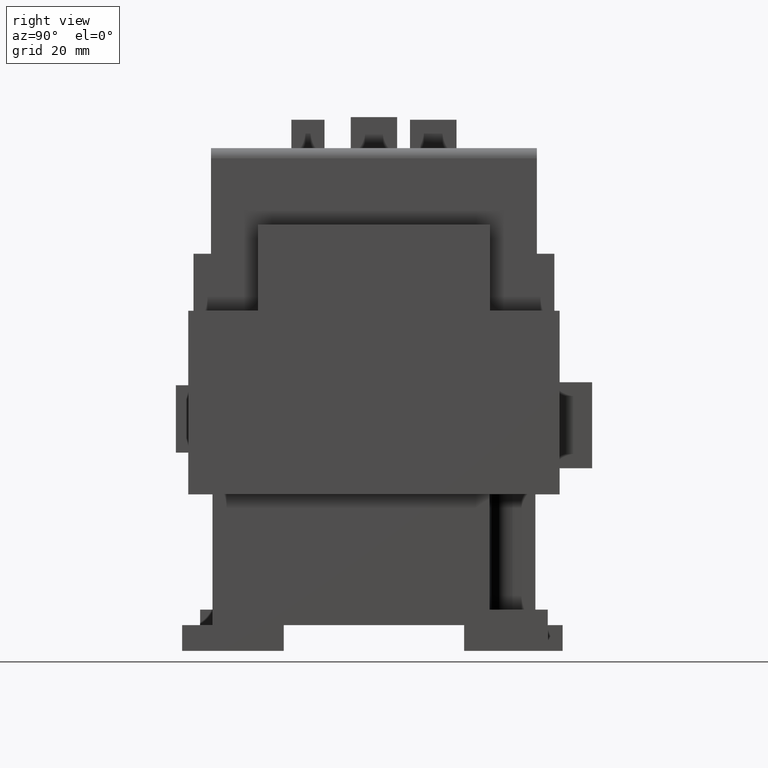
[diagram: clean part render]
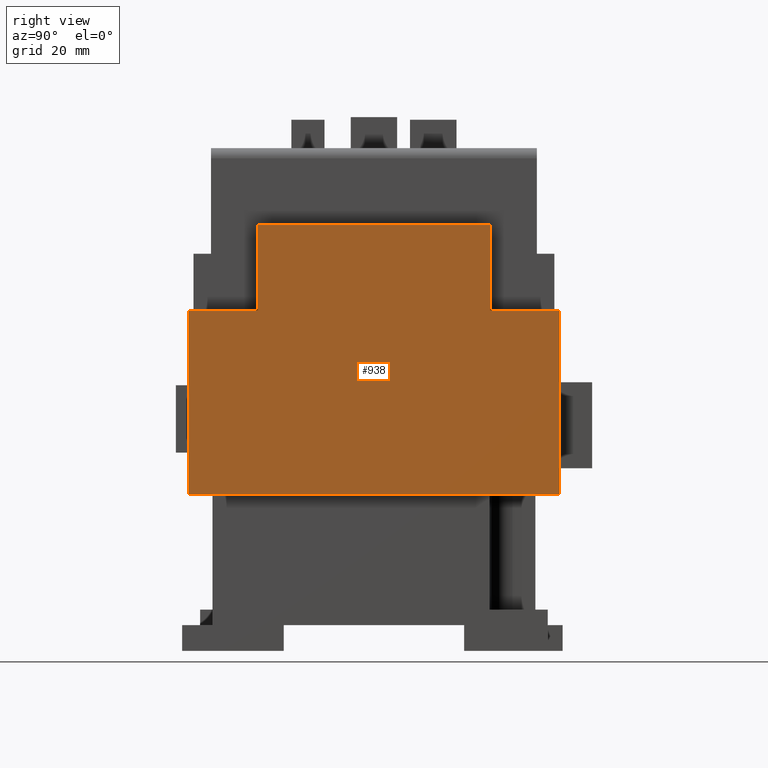
[diagram: same view with one face highlighted and labeled with its STEP entity id]
A machine part, right view. The second image highlights one B-rep face of the part: STEP entity #938.
In plain terms, the highlighted planar face has unit normal (-1, 0, 0).
Its self-contained STEP definition (entity closure, byte-faithful):
#938=ADVANCED_FACE('',(#1823),#1395,.F.);
#1395=PLANE('',#9949);
#1823=FACE_OUTER_BOUND('',#2407,.T.);
#2407=EDGE_LOOP('',(#4821,#4822,#4823,#4824,#4825,#4826,#4827,#4828));
#4821=ORIENTED_EDGE('',*,*,#7064,.F.);
#4822=ORIENTED_EDGE('',*,*,#7065,.F.);
#4823=ORIENTED_EDGE('',*,*,#7066,.F.);
#4824=ORIENTED_EDGE('',*,*,#7067,.F.);
#4825=ORIENTED_EDGE('',*,*,#7068,.F.);
#4826=ORIENTED_EDGE('',*,*,#6949,.T.);
#4827=ORIENTED_EDGE('',*,*,#6943,.T.);
#4828=ORIENTED_EDGE('',*,*,#6940,.T.);
#5730=VERTEX_POINT('',#14655);
#5731=VERTEX_POINT('',#14657);
#5733=VERTEX_POINT('',#14663);
#5736=VERTEX_POINT('',#14673);
#5816=VERTEX_POINT('',#14917);
#5817=VERTEX_POINT('',#14919);
#5818=VERTEX_POINT('',#14921);
#5819=VERTEX_POINT('',#14923);
#6940=EDGE_CURVE('',#5731,#5730,#8077,.T.);
#6943=EDGE_CURVE('',#5733,#5731,#8080,.T.);
#6949=EDGE_CURVE('',#5736,#5733,#8086,.T.);
#7064=EDGE_CURVE('',#5816,#5730,#8175,.T.);
#7065=EDGE_CURVE('',#5817,#5816,#8176,.T.);
#7066=EDGE_CURVE('',#5818,#5817,#8177,.T.);
#7067=EDGE_CURVE('',#5819,#5818,#8178,.T.);
#7068=EDGE_CURVE('',#5736,#5819,#8179,.T.);
#8077=LINE('',#14656,#9188);
#8080=LINE('',#14662,#9191);
#8086=LINE('',#14672,#9197);
#8175=LINE('',#14916,#9286);
#8176=LINE('',#14918,#9287);
#8177=LINE('',#14920,#9288);
#8178=LINE('',#14922,#9289);
#8179=LINE('',#14924,#9290);
#9188=VECTOR('',#12037,1.);
#9191=VECTOR('',#12042,1.);
#9197=VECTOR('',#12050,1.);
#9286=VECTOR('',#12289,1.);
#9287=VECTOR('',#12290,1.);
#9288=VECTOR('',#12291,1.);
#9289=VECTOR('',#12292,1.);
#9290=VECTOR('',#12293,1.);
#9949=AXIS2_PLACEMENT_3D('',#14925,#12294,#12295);
#12037=DIRECTION('',(0.,3.97579866926576E-014,1.));
#12042=DIRECTION('',(0.,-1.,3.97579866926576E-014));
#12050=DIRECTION('',(0.,3.97579866926576E-014,1.));
#12289=DIRECTION('',(0.,1.,0.));
#12290=DIRECTION('',(0.,0.,1.));
#12291=DIRECTION('',(0.,1.,0.));
#12292=DIRECTION('',(0.,0.,1.));
#12293=DIRECTION('',(0.,-1.,9.63735264431559E-017));
#12294=DIRECTION('',(-1.,0.,0.));
#12295=DIRECTION('',(0.,0.,1.));
#14655=CARTESIAN_POINT('',(31.5,22.5000000000031,77.6499999999991));
#14656=CARTESIAN_POINT('',(31.5,22.5000000000024,60.9499999999991));
#14657=CARTESIAN_POINT('',(31.5,22.5000000000024,60.9499999999991));
#14662=CARTESIAN_POINT('',(31.5,36.0000000000024,60.9499999999986));
#14663=CARTESIAN_POINT('',(31.5,36.0000000000024,60.9499999999986));
#14672=CARTESIAN_POINT('',(31.5,36.000000000001,25.3499999999986));
#14673=CARTESIAN_POINT('',(31.5,36.000000000001,25.3499999999986));
#14916=CARTESIAN_POINT('',(31.5,-22.5,77.65));
#14917=CARTESIAN_POINT('',(31.5,-22.5,77.65));
#14918=CARTESIAN_POINT('',(31.5,-22.5,60.95));
#14919=CARTESIAN_POINT('',(31.5,-22.5,60.95));
#14920=CARTESIAN_POINT('',(31.5,-36.,60.95));
#14921=CARTESIAN_POINT('',(31.5,-36.,60.95));
#14922=CARTESIAN_POINT('',(31.5,-36.,25.35));
#14923=CARTESIAN_POINT('',(31.5,-36.,25.35));
#14924=CARTESIAN_POINT('',(31.5,0.,25.35));
#14925=CARTESIAN_POINT('',(31.5,1.82560503268111E-015,77.65));